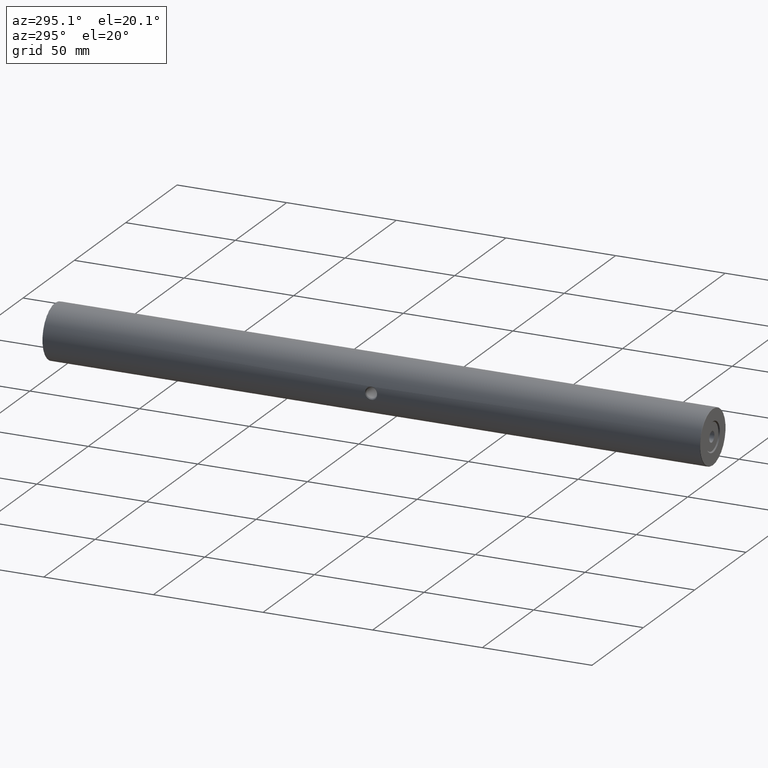
[diagram: clean part render]
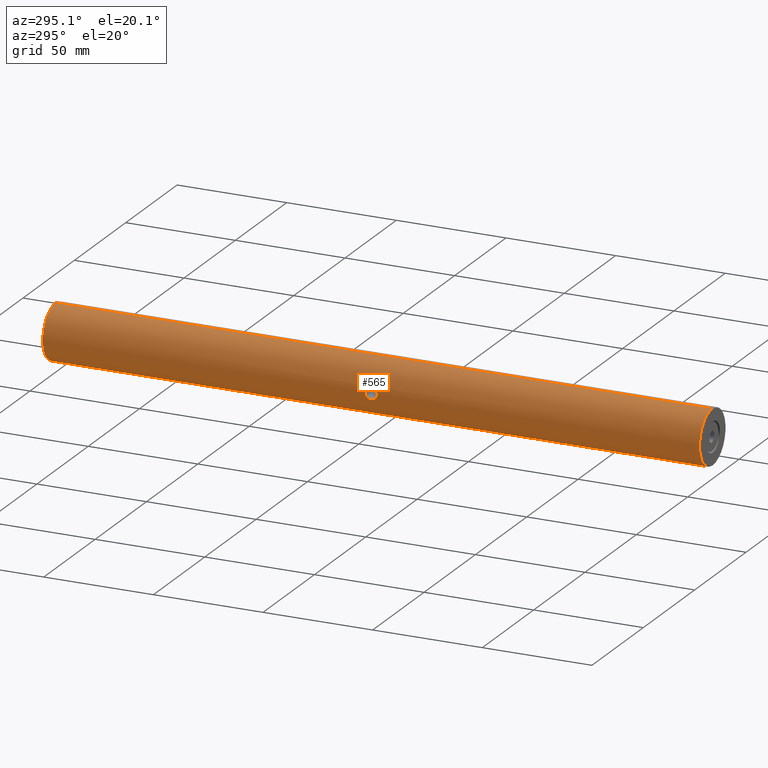
[diagram: same view with one face highlighted and labeled with its STEP entity id]
A machine part, auxiliary view. The second image highlights one B-rep face of the part: STEP entity #565.
In plain terms, the highlighted cylindrical surface (edge-blend (fillet) strip) has radius 12.5 mm, axis along (-0, -1, -0).
Its self-contained STEP definition (entity closure, byte-faithful):
#14 = CARTESIAN_POINT ( 'NONE',  ( -34.66645419302964370, 1.029721679353714059, 47.10942330578985349 ) ) ;
#67 = CARTESIAN_POINT ( 'NONE',  ( -22.50520183104453409, -148.3517478152305955, 37.50000000000000711 ) ) ;
#113 = CARTESIAN_POINT ( 'NONE',  ( -34.92002400582619259, 3.832124608273886679, 51.45923812927940588 ) ) ;
#146 = CARTESIAN_POINT ( 'NONE',  ( -34.87912024511820874, 3.630988285928328896, 51.77802314557406760 ) ) ;
#181 = VERTEX_POINT ( 'NONE', #877 ) ;
#183 = CARTESIAN_POINT ( 'NONE',  ( -34.87963477422165681, -0.8371459405081274063, 51.77451349613063769 ) ) ;
#321 = VERTEX_POINT ( 'NONE', #67 ) ;
#374 = CARTESIAN_POINT ( 'NONE',  ( -35.00520183104452343, -1.413082142476817626, 50.19045706894505798 ) ) ;
#390 = CARTESIAN_POINT ( 'NONE',  ( -34.85705643052070712, 3.515358687010934791, 51.92363226166172296 ) ) ;
#401 = VERTEX_POINT ( 'NONE', #869 ) ;
#407 = CARTESIAN_POINT ( 'NONE',  ( -34.91000489704504162, 3.784083020754105409, 51.54180631073813146 ) ) ;
#422 = VERTEX_POINT ( 'NONE', #1122 ) ;
#470 = CIRCLE ( 'NONE', #2433, 12.49999999999999645 ) ;
#502 = CARTESIAN_POINT ( 'NONE',  ( -34.92056304550705903, -1.039858968523691640, 48.53915210884452591 ) ) ;
#512 = B_SPLINE_CURVE_WITH_KNOTS ( 'NONE', 3,
 ( #969, #1437, #1734, #2276, #2244, #113, #407, #146, #390, #3311, #1216, #1750, #1488, #2787, #2261, #3327, #3357, #936, #3341, #3031, #3379, #919, #952, #1234, #1506, #2296, #3082, #1996, #183, #3100, #688, #707, #1768, #2839, #2579, #1253, #374, #639 ),
 .UNSPECIFIED., .F., .F.,
 ( 4, 2, 2, 2, 2, 2, 2, 2, 2, 2, 2, 2, 2, 2, 2, 2, 2, 2, 4 ),
 ( 0.5000000000000000000, 0.5624999999999987788, 0.5781249999999992228, 0.5937499999999995559, 0.6249999999999993339, 0.6562499999999991118, 0.6874999999999988898, 0.7187499999999986677, 0.7343749999999986677, 0.7499999999999986677, 0.7812499999999986677, 0.8124999999999986677, 0.8437499999999986677, 0.8749999999999986677, 0.9062499999999986677, 0.9374999999999986677, 0.9531249999999986677, 0.9687499999999986677, 1.000000000000000000 ),
 .UNSPECIFIED. ) ;
#520 = CARTESIAN_POINT ( 'NONE',  ( -34.66192908598772959, 1.582225631736193350, 47.09070756900329258 ) ) ;
#538 = DIRECTION ( 'NONE',  ( 0.0000000000000000000, 0.0000000000000000000, 1.000000000000000000 ) ) ;
#565 = ADVANCED_FACE ( 'NONE', ( #2983, #1652 ), #589, .T. ) ;
#589 = CYLINDRICAL_SURFACE ( 'NONE', #1902, 12.49999999999999645 ) ;
#639 = CARTESIAN_POINT ( 'NONE',  ( -35.00520183104453764, -1.413082124769313053, 50.00000000000000000 ) ) ;
#688 = CARTESIAN_POINT ( 'NONE',  ( -34.93964974344254415, -1.128013625766255634, 51.29060020601615832 ) ) ;
#707 = CARTESIAN_POINT ( 'NONE',  ( -34.96325857829899775, -1.233718697994545588, 51.02694110184788201 ) ) ;
#724 = ORIENTED_EDGE ( 'NONE', *, *, #3370, .T. ) ;
#745 = CARTESIAN_POINT ( 'NONE',  ( -34.81216474023053564, -0.4587072315365797737, 47.80748851897819662 ) ) ;
#766 = CARTESIAN_POINT ( 'NONE',  ( -34.92365520081639119, 3.852890852365518537, 48.53098690564556250 ) ) ;
#783 = CARTESIAN_POINT ( 'NONE',  ( -34.87939741777520908, -0.8359134742905356408, 48.22389352008129038 ) ) ;
#810 = DIRECTION ( 'NONE',  ( -0.0000000000000000000, -1.000000000000000000, -0.0000000000000000000 ) ) ;
#869 = CARTESIAN_POINT ( 'NONE',  ( -35.00520183104453764, -1.413082124769313053, 50.00000000000000000 ) ) ;
#877 = CARTESIAN_POINT ( 'NONE',  ( -22.50520183104453409, 151.1482521847693761, 37.50000000000000711 ) ) ;
#916 = AXIS2_PLACEMENT_3D ( 'NONE', #1868, #2935, #538 ) ;
#919 = CARTESIAN_POINT ( 'NONE',  ( -34.68406788087504111, 0.6663276250998645400, 52.81543937146642520 ) ) ;
#936 = CARTESIAN_POINT ( 'NONE',  ( -34.66304078550320611, 1.581811714229173438, 52.90465927043074146 ) ) ;
#952 = CARTESIAN_POINT ( 'NONE',  ( -34.69719134325679732, 0.4871785545958924879, 52.75879586374930597 ) ) ;
#969 = CARTESIAN_POINT ( 'NONE',  ( -35.00520147448047226, 4.209585013875031478, 50.00298564924417377 ) ) ;
#1009 = DIRECTION ( 'NONE',  ( 0.0000000000000000000, 0.0000000000000000000, 1.000000000000000000 ) ) ;
#1028 = CARTESIAN_POINT ( 'NONE',  ( -34.68404829437903913, 2.129844607696598224, 47.18447624015830399 ) ) ;
#1040 = VECTOR ( 'NONE', #810, 1000.000000000000000 ) ;
#1049 = CARTESIAN_POINT ( 'NONE',  ( -22.50520183104453409, 151.3982521847693761, 50.00000000000000000 ) ) ;
#1122 = CARTESIAN_POINT ( 'NONE',  ( -22.50520183104453409, 151.1482521847693761, 62.50000000000000000 ) ) ;
#1155 = EDGE_CURVE ( 'NONE', #181, #321, #1318, .T. ) ;
#1161 = EDGE_CURVE ( 'NONE', #422, #1198, #1876, .T. ) ;
#1198 = VERTEX_POINT ( 'NONE', #1657 ) ;
#1216 = CARTESIAN_POINT ( 'NONE',  ( -34.78950233568569672, 3.111229001366530245, 52.31461547249379151 ) ) ;
#1234 = CARTESIAN_POINT ( 'NONE',  ( -34.72924432497527647, 0.1489096345477873007, 52.61311078798996022 ) ) ;
#1253 = CARTESIAN_POINT ( 'NONE',  ( -35.00080834476694491, -1.395005945101353673, 50.38049639795583090 ) ) ;
#1272 = CARTESIAN_POINT ( 'NONE',  ( -34.93943696049745284, -1.127055212685837970, 48.70724999365044283 ) ) ;
#1289 = CARTESIAN_POINT ( 'NONE',  ( -34.69688201948944339, 0.4909844492230013291, 47.23984144476118274 ) ) ;
#1308 = CARTESIAN_POINT ( 'NONE',  ( -34.69691194386619770, 2.305978899512145297, 47.23996501532300840 ) ) ;
#1318 = LINE ( 'NONE', #1860, #1040 ) ;
#1326 = CARTESIAN_POINT ( 'NONE',  ( -34.87974277245858445, 3.646729403829698235, 48.21237859045336194 ) ) ;
#1437 = CARTESIAN_POINT ( 'NONE',  ( -35.00511057740308019, 4.209214405500373068, 50.38354389367549402 ) ) ;
#1487 = EDGE_LOOP ( 'NONE', ( #3377, #724, #1990, #1602 ) ) ;
#1488 = CARTESIAN_POINT ( 'NONE',  ( -34.72905683929542420, 2.646135917295012518, 52.61400507397662807 ) ) ;
#1506 = CARTESIAN_POINT ( 'NONE',  ( -34.74827243127629828, -0.01252608460277268229, 52.52367520649247723 ) ) ;
#1528 = CARTESIAN_POINT ( 'NONE',  ( -22.50520183104453409, -148.3517478152305955, 50.00000000000000000 ) ) ;
#1547 = CARTESIAN_POINT ( 'NONE',  ( -34.79001590677074773, -0.3182597610704255842, 47.68806332041809526 ) ) ;
#1567 = CARTESIAN_POINT ( 'NONE',  ( -35.00520183104454475, -1.413082089048333989, 49.61579498167179736 ) ) ;
#1585 = CARTESIAN_POINT ( 'NONE',  ( -34.98371482565011803, 4.119216514467791690, 49.24348063906667505 ) ) ;
#1591 = CIRCLE ( 'NONE', #916, 12.49999999999999645 ) ;
#1602 = ORIENTED_EDGE ( 'NONE', *, *, #3404, .T. ) ;
#1652 = FACE_BOUND ( 'NONE', #3261, .T. ) ;
#1657 = CARTESIAN_POINT ( 'NONE',  ( -22.50520183104453409, -148.3517478152305955, 62.50000000000000000 ) ) ;
#1734 = CARTESIAN_POINT ( 'NONE',  ( -34.98663707290642577, 4.134943202182561173, 50.76675213474097603 ) ) ;
#1750 = CARTESIAN_POINT ( 'NONE',  ( -34.74801352654728959, 2.806830232087813126, 52.52488523745056881 ) ) ;
#1768 = CARTESIAN_POINT ( 'NONE',  ( -34.97029888079363502, -1.264562310729290928, 50.93798354371648429 ) ) ;
#1811 = CARTESIAN_POINT ( 'NONE',  ( -35.00086437887826918, 4.191749029155246831, 49.62049296360545725 ) ) ;
#1832 = CARTESIAN_POINT ( 'NONE',  ( -35.00524692301917185, 4.209770318062356687, 49.81270652702851010 ) ) ;
#1853 = DIRECTION ( 'NONE',  ( 0.0000000000000000000, 0.0000000000000000000, -1.000000000000000000 ) ) ;
#1860 = CARTESIAN_POINT ( 'NONE',  ( -22.50520183104453409, 151.3982521847693761, 37.50000000000000711 ) ) ;
#1868 = CARTESIAN_POINT ( 'NONE',  ( -22.50520183104453409, 151.1482521847693761, 50.00000000000000000 ) ) ;
#1876 = LINE ( 'NONE', #3187, #3221 ) ;
#1902 = AXIS2_PLACEMENT_3D ( 'NONE', #1049, #3180, #1853 ) ;
#1990 = ORIENTED_EDGE ( 'NONE', *, *, #1155, .T. ) ;
#1996 = CARTESIAN_POINT ( 'NONE',  ( -34.85728882722114719, -0.7200549647186823554, 51.92206626499868349 ) ) ;
#2053 = CARTESIAN_POINT ( 'NONE',  ( -34.74847621064854053, 2.810539836434542860, 47.47735429469857849 ) ) ;
#2094 = CARTESIAN_POINT ( 'NONE',  ( -34.78997005408247389, 3.114338606259805076, 47.68786276467401564 ) ) ;
#2244 = CARTESIAN_POINT ( 'NONE',  ( -34.93867267745770278, 3.919447845769901573, 51.29073167652597220 ) ) ;
#2261 = CARTESIAN_POINT ( 'NONE',  ( -34.68386991631062699, 2.126930833339868432, 52.81629139459761291 ) ) ;
#2276 = CARTESIAN_POINT ( 'NONE',  ( -34.94725856886296356, 3.958573559244384921, 51.20539725452431412 ) ) ;
#2296 = CARTESIAN_POINT ( 'NONE',  ( -34.79013651507782612, -0.3190703822244045362, 52.31129705558581122 ) ) ;
#2373 = CARTESIAN_POINT ( 'NONE',  ( -34.68408990658851110, 0.6657967389098833344, 47.18465315096480595 ) ) ;
#2391 = CARTESIAN_POINT ( 'NONE',  ( -34.72889004347658215, 0.1521183055510820226, 47.38523661632108741 ) ) ;
#2410 = CARTESIAN_POINT ( 'NONE',  ( -34.66193446152056623, 1.214990703602055744, 47.09073003121872603 ) ) ;
#2433 = AXIS2_PLACEMENT_3D ( 'NONE', #1528, #2599, #1009 ) ;
#2579 = CARTESIAN_POINT ( 'NONE',  ( -34.98808031034208454, -1.341176413138208678, 50.66066995145104102 ) ) ;
#2599 = DIRECTION ( 'NONE',  ( 0.0000000000000000000, 1.000000000000000000, 0.0000000000000000000 ) ) ;
#2635 = CARTESIAN_POINT ( 'NONE',  ( -35.00520147448047226, 4.209585013875031478, 50.00298564924417377 ) ) ;
#2653 = CARTESIAN_POINT ( 'NONE',  ( -34.97116716009944071, 4.065639543419437452, 49.06127516973988634 ) ) ;
#2670 = CARTESIAN_POINT ( 'NONE',  ( -34.81219287687366659, 3.255432286912820494, 47.80758469912012032 ) ) ;
#2716 = ORIENTED_EDGE ( 'NONE', *, *, #3011, .T. ) ;
#2721 = B_SPLINE_CURVE_WITH_KNOTS ( 'NONE', 3,
 ( #3159, #1567, #2878, #1272, #502, #783, #2916, #745, #1547, #3139, #2391, #1289, #2373, #14, #2410, #520, #3454, #1028, #1308, #3437, #2053, #2094, #2670, #1326, #766, #2653, #1585, #1811, #1832, #2897 ),
 .UNSPECIFIED., .F., .F.,
 ( 4, 2, 2, 2, 2, 2, 2, 2, 2, 2, 2, 2, 2, 2, 4 ),
 ( 0.0000000000000000000, 0.06250000000000059674, 0.09375000000000041633, 0.1250000000000002220, 0.1562500000000000555, 0.1874999999999998612, 0.2187499999999996947, 0.2499999999999995282, 0.2812499999999993339, 0.3124999999999992228, 0.3437499999999990563, 0.3749999999999988898, 0.4374999999999995004, 0.4687499999999997780, 0.5000000000000000000 ),
 .UNSPECIFIED. ) ;
#2787 = CARTESIAN_POINT ( 'NONE',  ( -34.69672515563068060, 2.303875218702899463, 52.76087174921030964 ) ) ;
#2839 = CARTESIAN_POINT ( 'NONE',  ( -34.98275065807769124, -1.318488312147546138, 50.75447521957352137 ) ) ;
#2878 = CARTESIAN_POINT ( 'NONE',  ( -34.98691299259106557, -1.339639162736697697, 49.23677669488167652 ) ) ;
#2897 = CARTESIAN_POINT ( 'NONE',  ( -35.00520147448047226, 4.209585013875031478, 50.00298564924417377 ) ) ;
#2913 = EDGE_CURVE ( 'NONE', #3081, #401, #512, .T. ) ;
#2916 = CARTESIAN_POINT ( 'NONE',  ( -34.85689439159376235, -0.7179281710738468769, 48.07538743323101471 ) ) ;
#2935 = DIRECTION ( 'NONE',  ( -0.0000000000000000000, -1.000000000000000000, -0.0000000000000000000 ) ) ;
#2975 = DIRECTION ( 'NONE',  ( -0.0000000000000000000, -1.000000000000000000, -0.0000000000000000000 ) ) ;
#2983 = FACE_OUTER_BOUND ( 'NONE', #1487, .T. ) ;
#3011 = EDGE_CURVE ( 'NONE', #401, #3081, #2721, .T. ) ;
#3031 = CARTESIAN_POINT ( 'NONE',  ( -34.66195746431351665, 1.211812476573454145, 52.90917384922283873 ) ) ;
#3043 = ORIENTED_EDGE ( 'NONE', *, *, #2913, .T. ) ;
#3081 = VERTEX_POINT ( 'NONE', #2635 ) ;
#3082 = CARTESIAN_POINT ( 'NONE',  ( -34.81267991292354935, -0.4618486557760687061, 52.18960616372648076 ) ) ;
#3100 = CARTESIAN_POINT ( 'NONE',  ( -34.92091958335859658, -1.041568019865685368, 51.45788940184450411 ) ) ;
#3139 = CARTESIAN_POINT ( 'NONE',  ( -34.74815230536027144, -0.01157353984547948231, 47.47574332346948012 ) ) ;
#3159 = CARTESIAN_POINT ( 'NONE',  ( -35.00520183104453764, -1.413082124769313053, 50.00000000000000000 ) ) ;
#3180 = DIRECTION ( 'NONE',  ( -0.0000000000000000000, -1.000000000000000000, -0.0000000000000000000 ) ) ;
#3187 = CARTESIAN_POINT ( 'NONE',  ( -22.50520183104453409, 151.3982521847693761, 62.50000000000000000 ) ) ;
#3221 = VECTOR ( 'NONE', #2975, 1000.000000000000000 ) ;
#3261 = EDGE_LOOP ( 'NONE', ( #2716, #3043 ) ) ;
#3311 = CARTESIAN_POINT ( 'NONE',  ( -34.81205133252027650, 3.254567286018120509, 52.19320050901255570 ) ) ;
#3327 = CARTESIAN_POINT ( 'NONE',  ( -34.67081540850384869, 1.856390161468157718, 52.87196965017539441 ) ) ;
#3341 = CARTESIAN_POINT ( 'NONE',  ( -34.66191919043987468, 1.488437803987080699, 52.90933378057255254 ) ) ;
#3357 = CARTESIAN_POINT ( 'NONE',  ( -34.66752058121686986, 1.766213776380966882, 52.88584409472483827 ) ) ;
#3370 = EDGE_CURVE ( 'NONE', #422, #181, #1591, .T. ) ;
#3377 = ORIENTED_EDGE ( 'NONE', *, *, #1161, .F. ) ;
#3379 = CARTESIAN_POINT ( 'NONE',  ( -34.66652474597032096, 1.028189449071588824, 52.89027716197225715 ) ) ;
#3404 = EDGE_CURVE ( 'NONE', #321, #1198, #470, .T. ) ;
#3437 = CARTESIAN_POINT ( 'NONE',  ( -34.72905173131857737, 2.645954824945368600, 47.38598351051696511 ) ) ;
#3454 = CARTESIAN_POINT ( 'NONE',  ( -34.66651604185518210, 1.768063399753170728, 47.10968654197451855 ) ) ;